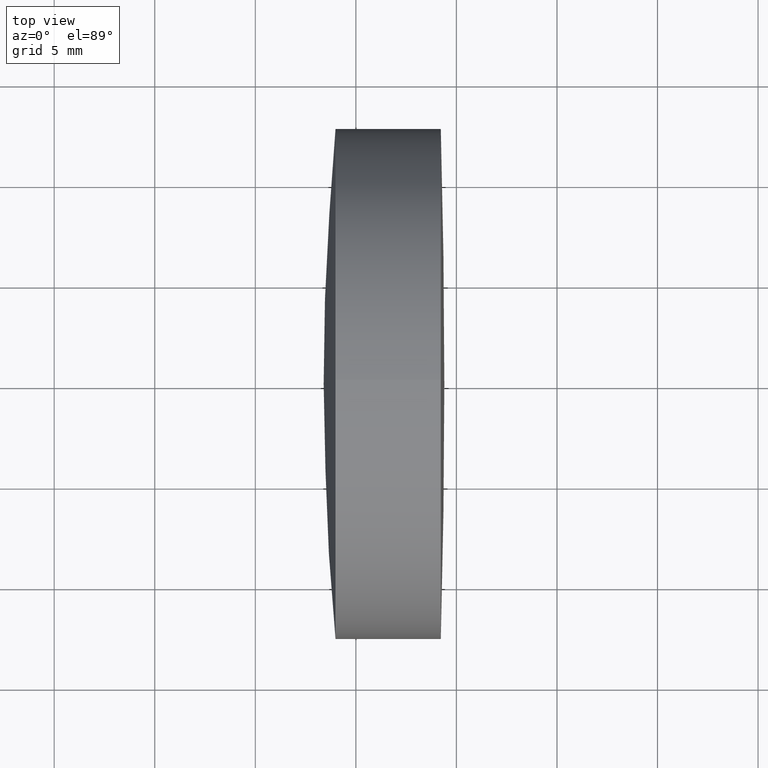
[diagram: clean part render]
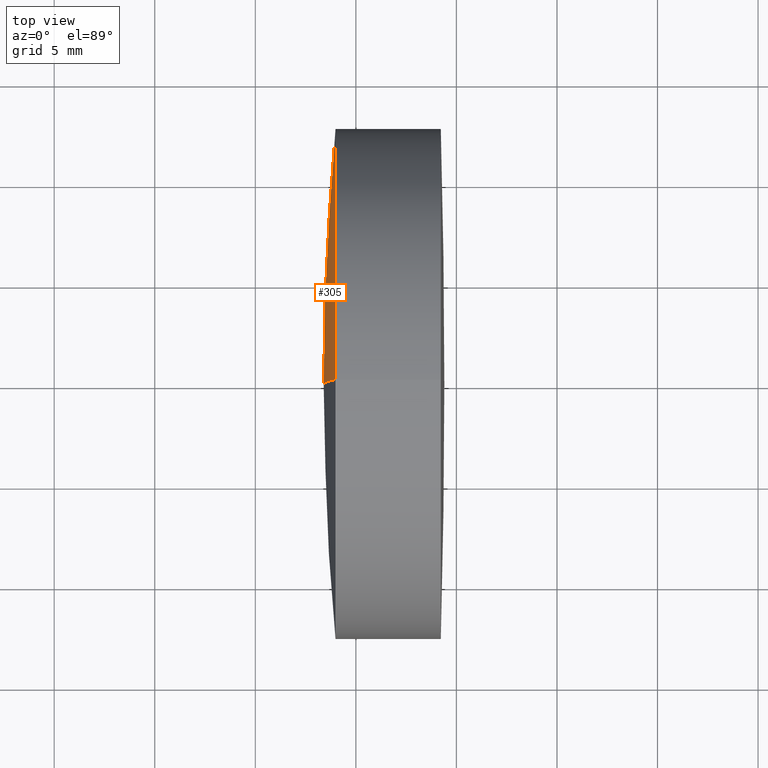
[diagram: same view with one face highlighted and labeled with its STEP entity id]
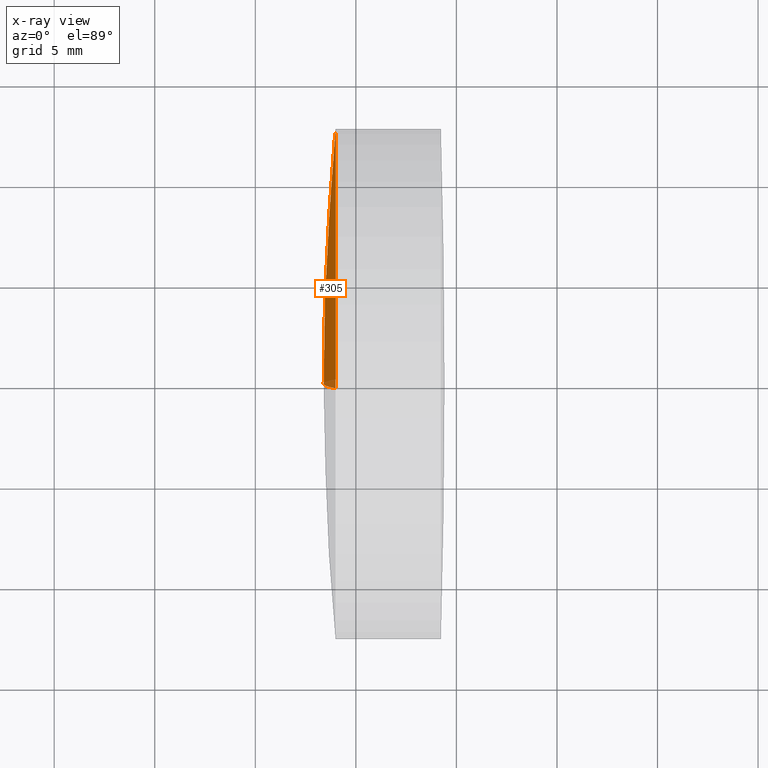
[diagram: x-ray of the same camera — body ghosted, the highlighted face saturated]
A machine part, top view. The second image highlights one B-rep face of the part: STEP entity #305.
The next image is the same camera in x-ray: the body ghosted, the highlighted face saturated — about 3% of this face is hidden behind the body in this view.
In plain terms, the highlighted spherical surface has radius 137.1 mm.
Its self-contained STEP definition (entity closure, byte-faithful):
#12 = EDGE_CURVE ( 'NONE', #281, #100, #332, .T. ) ;
#62 = VERTEX_POINT ( 'NONE', #145 ) ;
#79 = AXIS2_PLACEMENT_3D ( 'NONE', #88, #228, #171 ) ;
#81 = CARTESIAN_POINT ( 'NONE',  ( 425.4994475431022900, 0.0000000000000000000, -3.630634082691148100E-015 ) ) ;
#84 = CARTESIAN_POINT ( 'NONE',  ( 288.9889351273912400, 0.0000000000000000000, 12.69999999999995700 ) ) ;
#88 = CARTESIAN_POINT ( 'NONE',  ( 425.4994475431022900, 0.0000000000000000000, -3.630634082691148100E-015 ) ) ;
#94 = EDGE_CURVE ( 'NONE', #281, #62, #219, .T. ) ;
#100 = VERTEX_POINT ( 'NONE', #257 ) ;
#103 = ORIENTED_EDGE ( 'NONE', *, *, #12, .F. ) ;
#134 = DIRECTION ( 'NONE',  ( -1.000000000000000000, -0.0000000000000000000, -0.0000000000000000000 ) ) ;
#135 = ORIENTED_EDGE ( 'NONE', *, *, #221, .T. ) ;
#145 = CARTESIAN_POINT ( 'NONE',  ( 288.9889351273912400, 1.555301434917133100E-015, -12.69999999999996000 ) ) ;
#148 = EDGE_LOOP ( 'NONE', ( #342, #135, #103 ) ) ;
#151 = AXIS2_PLACEMENT_3D ( 'NONE', #292, #134, #243 ) ;
#163 = DIRECTION ( 'NONE',  ( 0.0000000000000000000, -1.000000000000000000, 0.0000000000000000000 ) ) ;
#171 = DIRECTION ( 'NONE',  ( 0.0000000000000000000, -1.224646799147353200E-016, 1.000000000000000000 ) ) ;
#174 = CARTESIAN_POINT ( 'NONE',  ( 425.4994475431022900, 0.0000000000000000000, -3.630634082691148100E-015 ) ) ;
#208 = DIRECTION ( 'NONE',  ( 0.0000000000000000000, 1.000000000000000000, 0.0000000000000000000 ) ) ;
#219 = CIRCLE ( 'NONE', #151, 12.69999999999999600 ) ;
#221 = EDGE_CURVE ( 'NONE', #62, #100, #303, .T. ) ;
#228 = DIRECTION ( 'NONE',  ( -0.0000000000000000000, 1.000000000000000000, 1.224646799147353200E-016 ) ) ;
#243 = DIRECTION ( 'NONE',  ( 0.0000000000000000000, 0.0000000000000000000, 1.000000000000000000 ) ) ;
#244 = AXIS2_PLACEMENT_3D ( 'NONE', #81, #208, #326 ) ;
#257 = CARTESIAN_POINT ( 'NONE',  ( 288.3994475431023300, 0.0000000000000000000, 4.764319725463957600E-015 ) ) ;
#265 = AXIS2_PLACEMENT_3D ( 'NONE', #174, #163, #282 ) ;
#281 = VERTEX_POINT ( 'NONE', #84 ) ;
#282 = DIRECTION ( 'NONE',  ( 0.0000000000000000000, 0.0000000000000000000, -1.000000000000000000 ) ) ;
#284 = FACE_OUTER_BOUND ( 'NONE', #148, .T. ) ;
#292 = CARTESIAN_POINT ( 'NONE',  ( 288.9889351273912400, 0.0000000000000000000, 0.0000000000000000000 ) ) ;
#303 = CIRCLE ( 'NONE', #79, 137.0999999999999900 ) ;
#305 = ADVANCED_FACE ( 'NONE', ( #284 ), #346, .T. ) ;
#326 = DIRECTION ( 'NONE',  ( 0.0000000000000000000, 0.0000000000000000000, 1.000000000000000000 ) ) ;
#332 = CIRCLE ( 'NONE', #265, 137.0999999999999900 ) ;
#342 = ORIENTED_EDGE ( 'NONE', *, *, #94, .T. ) ;
#346 = SPHERICAL_SURFACE ( 'NONE', #244, 137.0999999999999900 ) ;